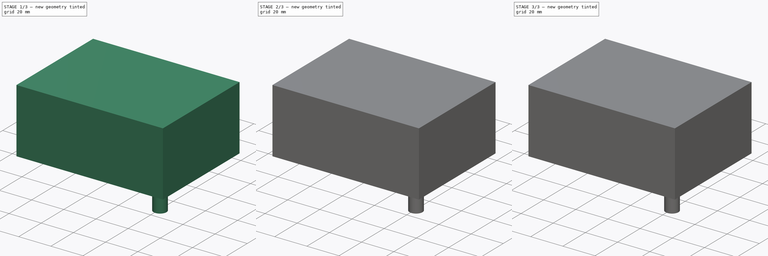
[diagram: build sequence overview — one tinted view per stage of 3, left to right]
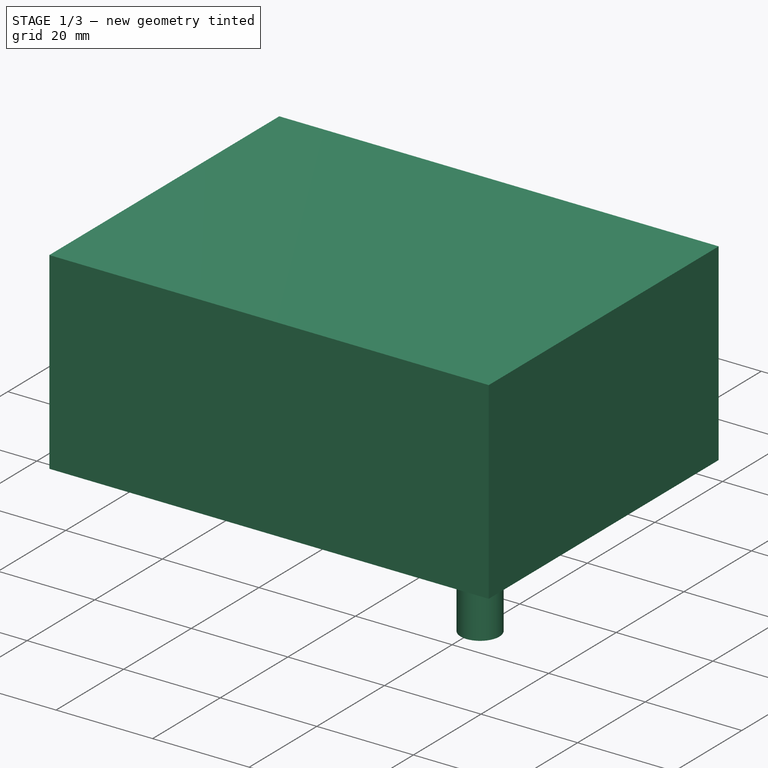
[diagram: stage 1 of 3 — iso view after this stage's code; geometry added in this stage tinted green]
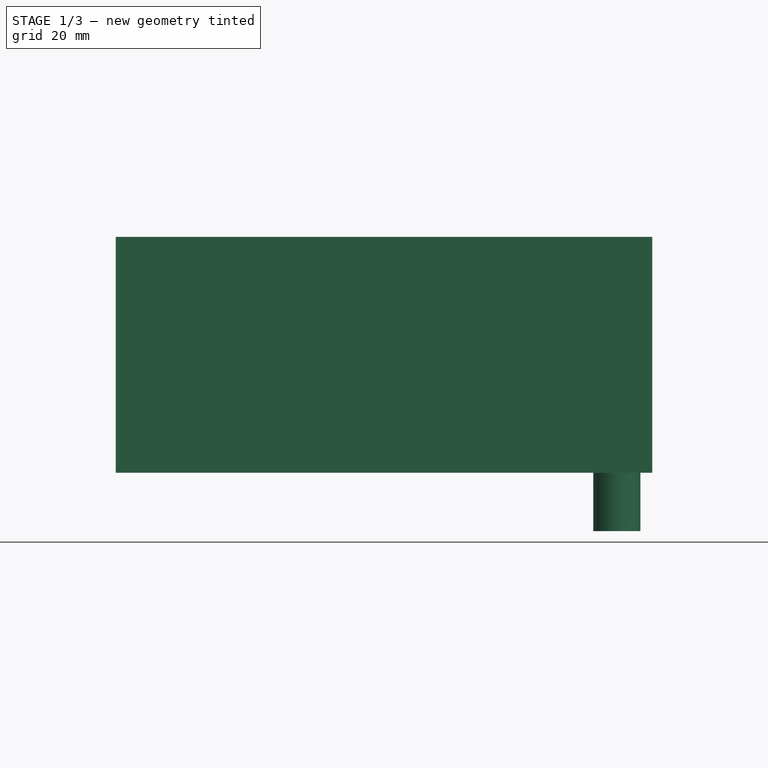
[diagram: stage 1 of 3 — front view after this stage's code; geometry added in this stage tinted green]
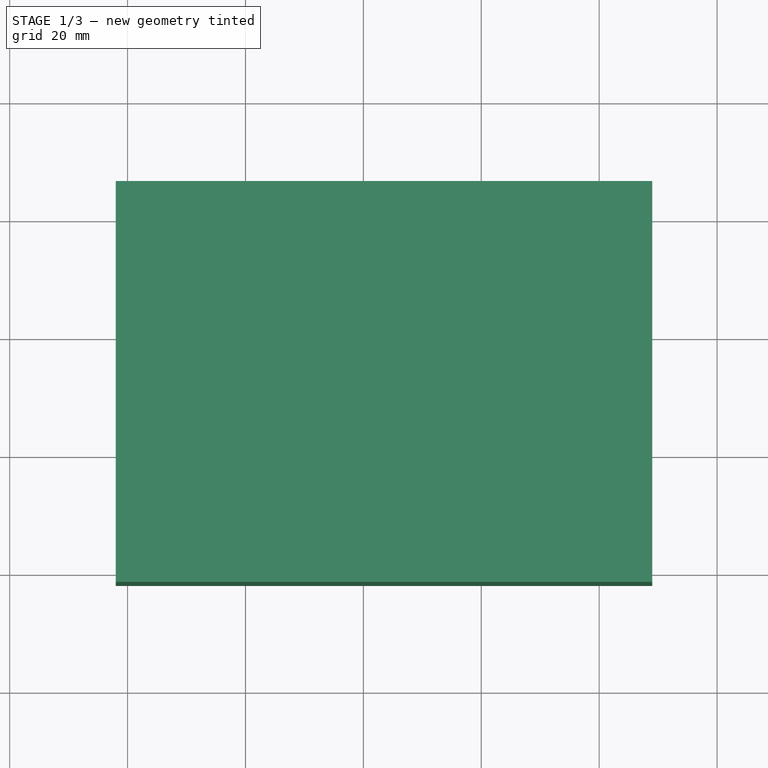
[diagram: stage 1 of 3 — top view after this stage's code; geometry added in this stage tinted green]
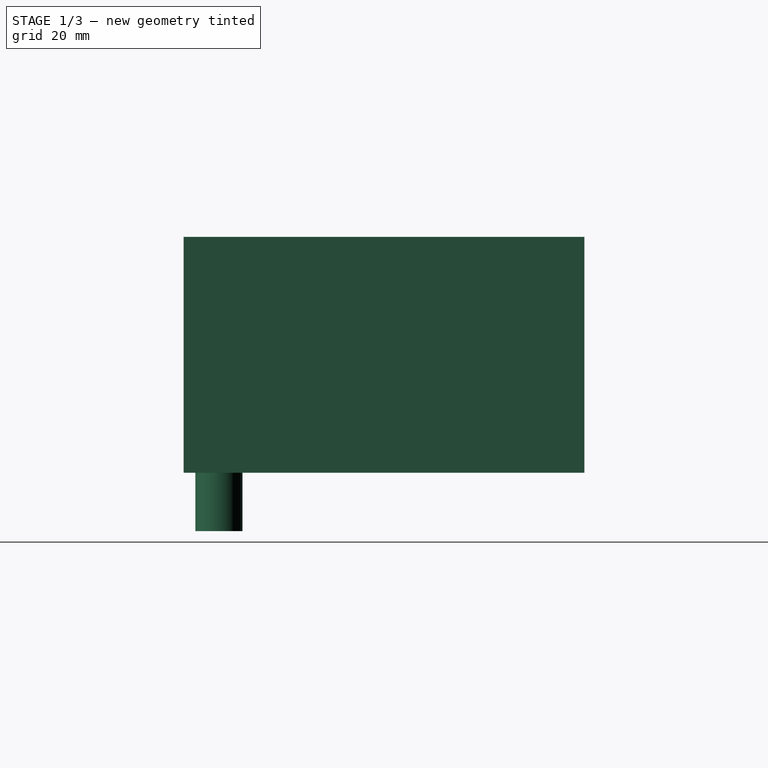
[diagram: stage 1 of 3 — right view after this stage's code; geometry added in this stage tinted green]
FCSTD DOCUMENT  (FreeCAD 0.14R3700 (Git))
Label: case-v0.1
License: CC-BY 3.0
LicenseURL: http://creativecommons.org/licenses/by/3.0/
objects: Part::Cylinder×20, Part::MultiFuse×9, Part::Box×6, Part::Cone×4, Sketcher::SketchObject×2, PartDesign::Pad×2, Part::Cut×1, Part::Offset×1
note: 47 computed .brp shape members not serialized (recipe doc carries the construction recipe); baked Part::Feature solids carry a one-line shape summary decoded from their .brp

FEATURE [Part::Box] Box001  label="inner-box-cutout"
  Height = 40
  Length = 91
  Placement = pos=(-2,-2,0) rot=(0,0,1;0rad)
  Width = 68
FEATURE [Part::Cylinder] Cylinder017
  Angle = 360
  Height = 10
  Placement = pos=(83,4,-9.9) rot=(0,0,1;0rad)
  Radius = 4
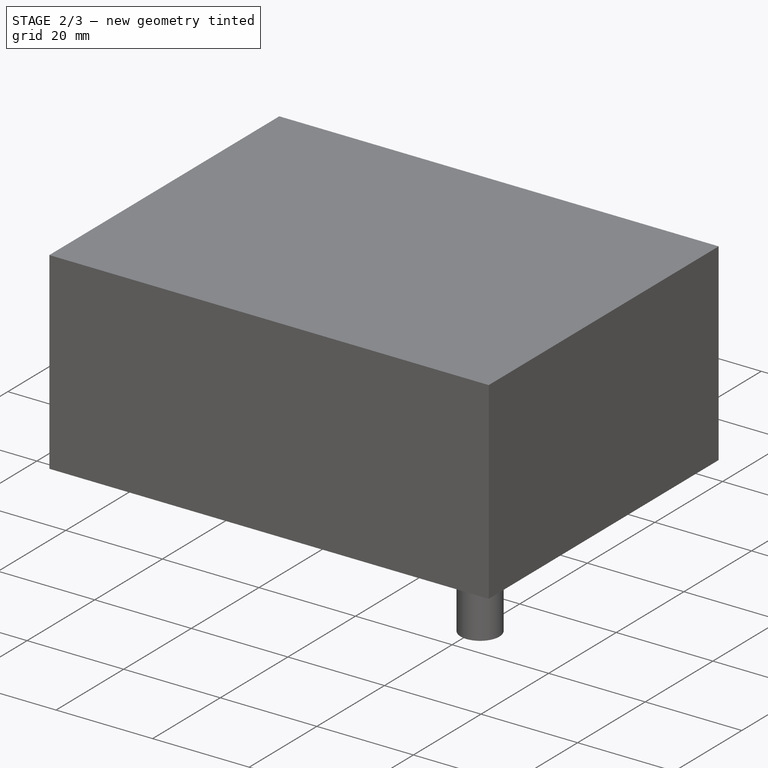
[diagram: stage 2 of 3 — iso view after this stage's code; geometry added in this stage tinted green]
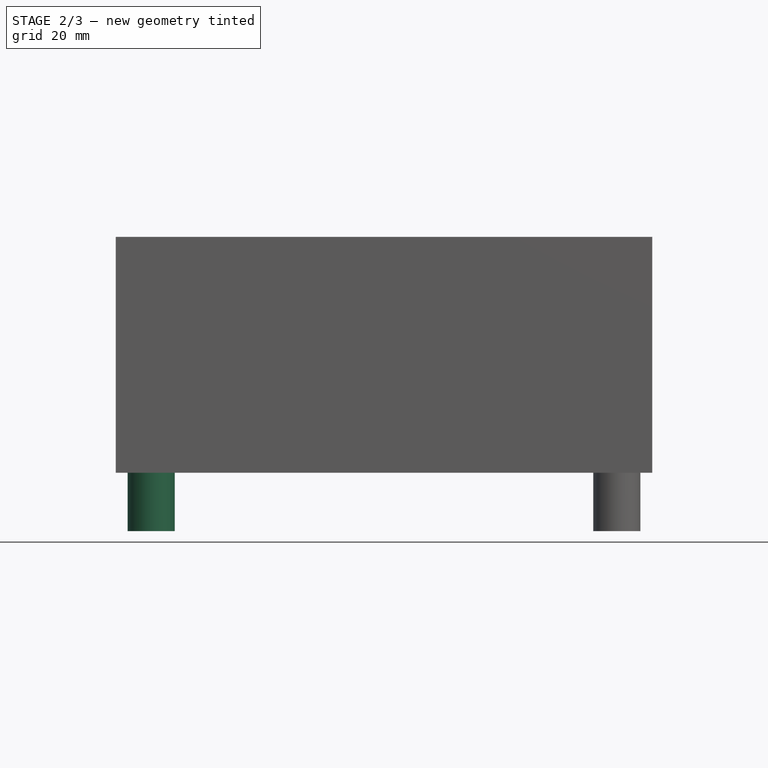
[diagram: stage 2 of 3 — front view after this stage's code; geometry added in this stage tinted green]
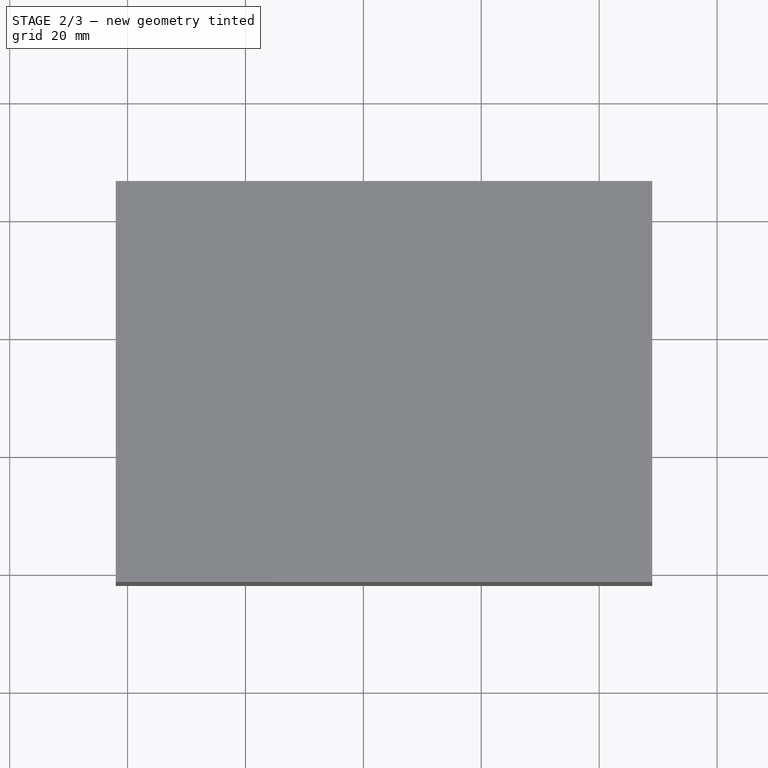
[diagram: stage 2 of 3 — top view after this stage's code; geometry added in this stage tinted green]
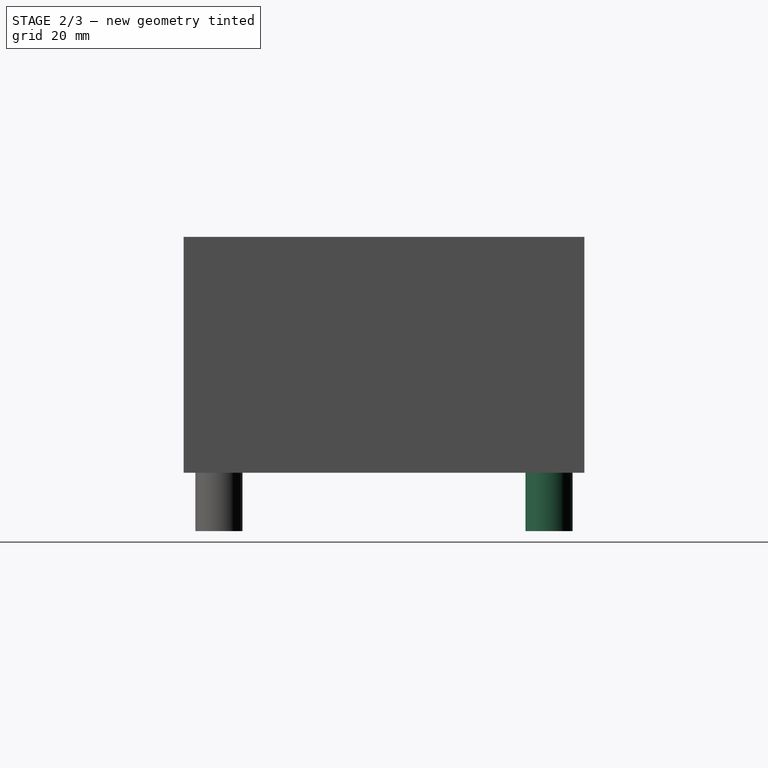
[diagram: stage 2 of 3 — right view after this stage's code; geometry added in this stage tinted green]
FEATURE [Part::Cylinder] Cylinder
  Angle = 360
  Height = 5.5
  Placement = pos=(4,4.5,-0.5) rot=(0,0,1;0rad)
  Radius = 2.3
FEATURE [Part::Cylinder] Cylinder001
  Angle = 360
  Height = 41
  Placement = pos=(83,4,-0.5) rot=(0,0,1;0rad)
  Radius = 2.3
FEATURE [Part::Cylinder] Cylinder002
  Angle = 360
  Height = 5.5
  Placement = pos=(83,60,-0.5) rot=(0,0,1;0rad)
  Radius = 2.3
FEATURE [Part::Cylinder] Cylinder003
  Angle = 360
  Height = 41
  Placement = pos=(4,60,-0.5) rot=(0,0,1;0rad)
  Radius = 2.3
FEATURE [Part::Box] Box004  label="usb-cutout"
  Height = 4.5
  Length = 10.6
  Placement = pos=(8.52,61,6.1) rot=(0,0,1;0rad)
  Width = 10
FEATURE [Part::Cylinder] Cylinder004
  Angle = 360
  Height = 10
  Placement = pos=(26,71,11.6) rot=(1,0,0;1.5708rad)
  Radius = 2.5
FEATURE [Part::Cylinder] Cylinder005
  Angle = 360
  Height = 10
  Placement = pos=(31.5,71,11.6) rot=(1,0,0;1.5708rad)
  Radius = 2.5
FEATURE [Part::Cylinder] Cylinder006
  Angle = 360
  Height = 10
  Placement = pos=(37,71,11.6) rot=(1,0,0;1.5708rad)
  Radius = 2.5
FEATURE [Part::MultiFuse] Fusion001  label="leds-cutout"
  Shapes = -> [Cylinder004,Cylinder005,Cylinder006]
FEATURE [Part::Cylinder] Cylinder007
  Angle = 360
  Height = 10
  Placement = pos=(42.9,72,16.6) rot=(1,0,0;1.5708rad)
  Radius = 2.5
FEATURE [Part::Cylinder] Cylinder008
  Angle = 360
  Height = 10
  Placement = pos=(50.55,72,16.6) rot=(1,0,0;1.5708rad)
  Radius = 2.5
FEATURE [Part::Cylinder] Cylinder009
  Angle = 360
  Height = 10
  Placement = pos=(58,5,16.6) rot=(1,0,0;1.5708rad)
  Radius = 2.5
FEATURE [Part::Cylinder] Cylinder010
  Angle = 360
  Height = 10
  Placement = pos=(68,5,16.6) rot=(1,0,0;1.5708rad)
  Radius = 2.5
FEATURE [Part::Cylinder] Cylinder011
  Angle = 360
  Height = 10
  Placement = pos=(78,5,16.6) rot=(1,0,0;1.5708rad)
  Radius = 2.5
FEATURE [Part::MultiFuse] Fusion002
  Shapes = -> [Cylinder007,Cylinder011,Cylinder009,Cylinder010,Cylinder008]
FEATURE [Part::Box] Box005
  Height = 7.5
  Length = 93
  Placement = pos=(-3,-3,-1) rot=(0,0,1;0rad)
  Width = 70
FEATURE [Sketcher::SketchObject] Sketch
  Placement = pos=(0,60,0) rot=(1,0,0;1.5708rad)
  sketch-geometry (8):
    g0: LineSegment StartX=18 StartY=0 StartZ=0 EndX=18 EndY=9 EndZ=0
    g1: LineSegment StartX=18 StartY=9 StartZ=0 EndX=23 EndY=17 EndZ=0
    g2: LineSegment StartX=23 StartY=17 StartZ=0 EndX=36 EndY=17 EndZ=0
    g3: LineSegment StartX=36 StartY=17 StartZ=0 EndX=41 EndY=22 EndZ=0
    g4: LineSegment StartX=41 StartY=22 StartZ=0 EndX=53 EndY=22 EndZ=0
    g5: LineSegment StartX=53 StartY=22 StartZ=0 EndX=65 EndY=6 EndZ=0
    g6: LineSegment StartX=65 StartY=6 StartZ=0 EndX=65 EndY=0 EndZ=0
    g7: LineSegment StartX=65 StartY=0 StartZ=0 EndX=18 EndY=0 EndZ=0
  constraints (24):
    c: PointOnObject(g0,g-1)
    c: Vertical(g0)
    c: Coincident(g0,g1)
    c: Coincident(g1,g2)
    c: Horizontal(g2)
    c: DistanceY(g0,g1) = 8
    c: DistanceY(g1,g0) = -17
    c: DistanceX(g-1,g0) = 18
    c: DistanceX(g0,g1) = 5
    c: Coincident(g2,g3)
    c: Coincident(g3,g4)
    c: Horizontal(g4)
    c: Coincident(g4,g5)
    c: Coincident(g5,g6)
    c: Vertical(g6)
    c: DistanceX(g1,g2) = 13
    c: DistanceY(g6,g4) = 22
    c: DistanceX(g2,g3) = 5
    c: DistanceX(g3,g4) = 12
    c: DistanceY(g5,g6) = -6
    c: Coincident(g6,g7)
    c: Coincident(g7,g0)
    c: Horizontal(g7)
    c: DistanceX(g4,g5) = 12
FEATURE [PartDesign::Pad] Pad
  Length = 30
  Length2 = 100
  Midplane = true
  Placement = pos=(0,60,0) rot=(1,0,0;1.5708rad)
  Sketch = -> Sketch
  Type = 0
FEATURE [Sketcher::SketchObject] Sketch001
  Placement = pos=(0,1,0) rot=(1,0,0;1.5708rad)
  sketch-geometry (4):
    g0: LineSegment StartX=48 StartY=6 StartZ=0 EndX=56 EndY=22 EndZ=0
    g1: LineSegment StartX=56 StartY=22 StartZ=0 EndX=80 EndY=22 EndZ=0
    g2: LineSegment StartX=80 StartY=22 StartZ=0 EndX=88 EndY=6 EndZ=0
    g3: LineSegment StartX=88 StartY=6 StartZ=0 EndX=48 EndY=6 EndZ=0
  constraints (12):
    c: Coincident(g0,g1)
    c: Horizontal(g1)
    c: Coincident(g1,g2)
    c: Coincident(g2,g3)
    c: Coincident(g3,g0)
    c: Horizontal(g3)
    c: DistanceX(g-1,g0) = 48
    c: DistanceX(g0,g0) = 8
    c: DistanceX(g2,g1) = -8
    c: DistanceX(g0,g1) = 24
    c: DistanceY(g0,g0) = 16
    c: DistanceY(g-1,g0) = 6
FEATURE [PartDesign::Pad] Pad001
  Length = 10
  Length2 = 100
  Placement = pos=(0,1,0) rot=(1,0,0;1.5708rad)
  Sketch = -> Sketch001
  Type = 0
FEATURE [Part::MultiFuse] Fusion003
  Shapes = -> [Box005,Pad,Pad001]
FEATURE [Part::Box] Box006
  Height = 10
  Length = 89
  Placement = pos=(-1,-1,0) rot=(0,0,1;0rad)
  Width = 66
FEATURE [Part::Box] Box007
  Height = 5
  Length = 89
  Placement = pos=(-1,-1,0) rot=(0,0,1;0rad)
  Width = 66
FEATURE [Part::Cylinder] Cylinder012
  Angle = 360
  Height = 5
  Placement = pos=(83,4,0) rot=(0,0,1;0rad)
  Radius = 1.75
FEATURE [Part::Cylinder] Cylinder013
  Angle = 360
  Height = 30
  Placement = pos=(83,4,0) rot=(0,0,1;0rad)
  Radius = 1.25
FEATURE [Part::Cone] Cone
  Angle = 360
  Height = 2
  Placement = pos=(83,4,0) rot=(0,0,1;0rad)
  Radius1 = 4
  Radius2 = 2
FEATURE [Part::MultiFuse] Fusion005
  Shapes = -> [Cylinder012,Cone,Cylinder013]
FEATURE [Part::Cylinder] Cylinder014
  Angle = 360
  Height = 30
  Placement = pos=(83,4,0) rot=(0,0,1;0rad)
  Radius = 1.25
FEATURE [Part::Cone] Cone001
  Angle = 360
  Height = 2
  Placement = pos=(83,4,0) rot=(0,0,1;0rad)
  Radius1 = 4
  Radius2 = 2
FEATURE [Part::Cylinder] Cylinder015
  Angle = 360
  Height = 5
  Placement = pos=(83,4,0) rot=(0,0,1;0rad)
  Radius = 1.75
FEATURE [Part::MultiFuse] Fusion006
  Placement = pos=(-79,56,0) rot=(0,0,1;0rad)
  Shapes = -> [Cylinder015,Cone001,Cylinder014]
FEATURE [Part::MultiFuse] Fusion007
  Shapes = -> [Fusion005,Fusion006]
FEATURE [Part::Cylinder] Cylinder016
  Angle = 360
  Height = 10
  Placement = pos=(4,60,-9.9) rot=(0,0,1;0rad)
  Radius = 4
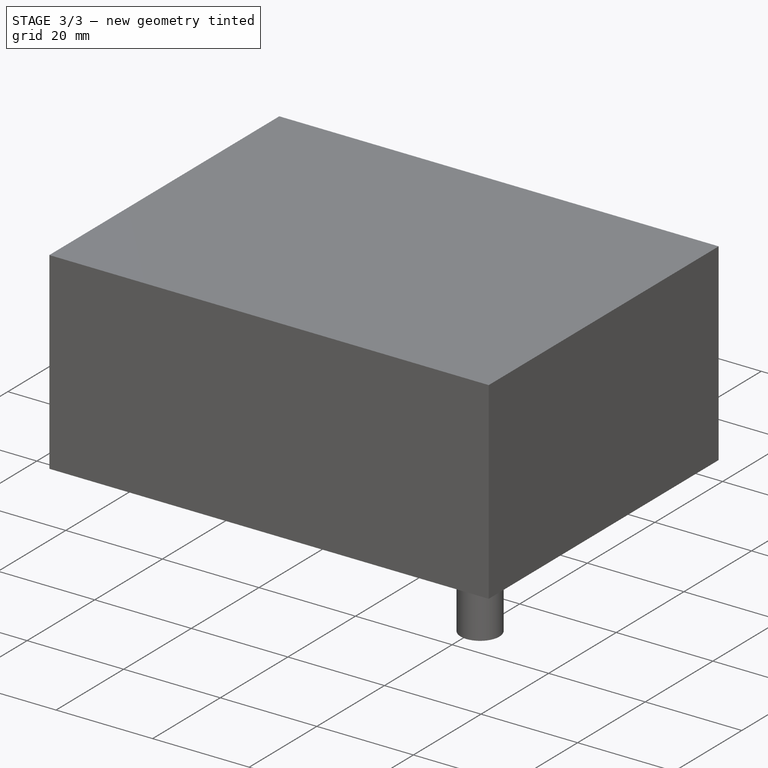
[diagram: stage 3 of 3 — iso view after this stage's code; geometry added in this stage tinted green]
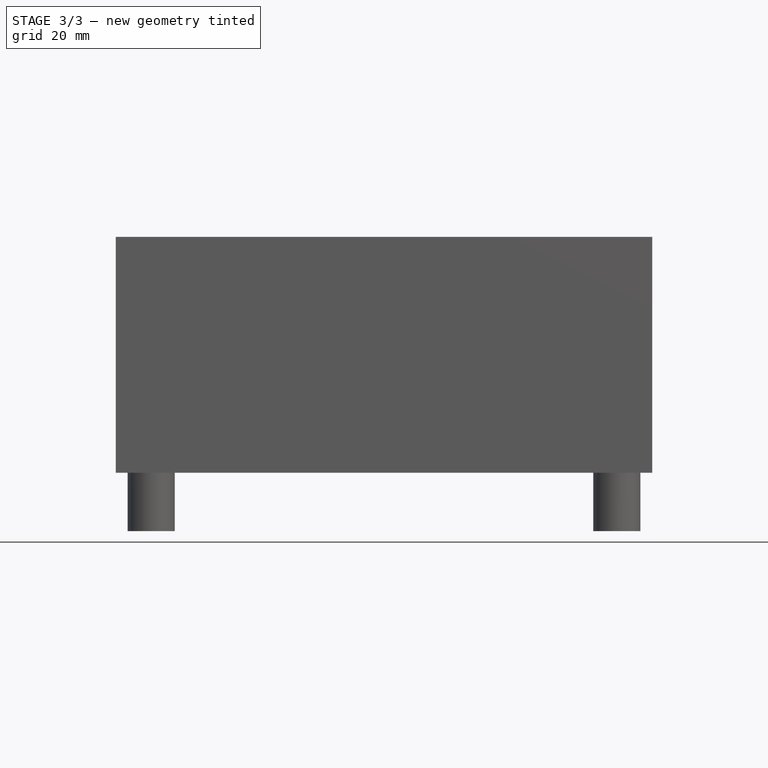
[diagram: stage 3 of 3 — front view after this stage's code; geometry added in this stage tinted green]
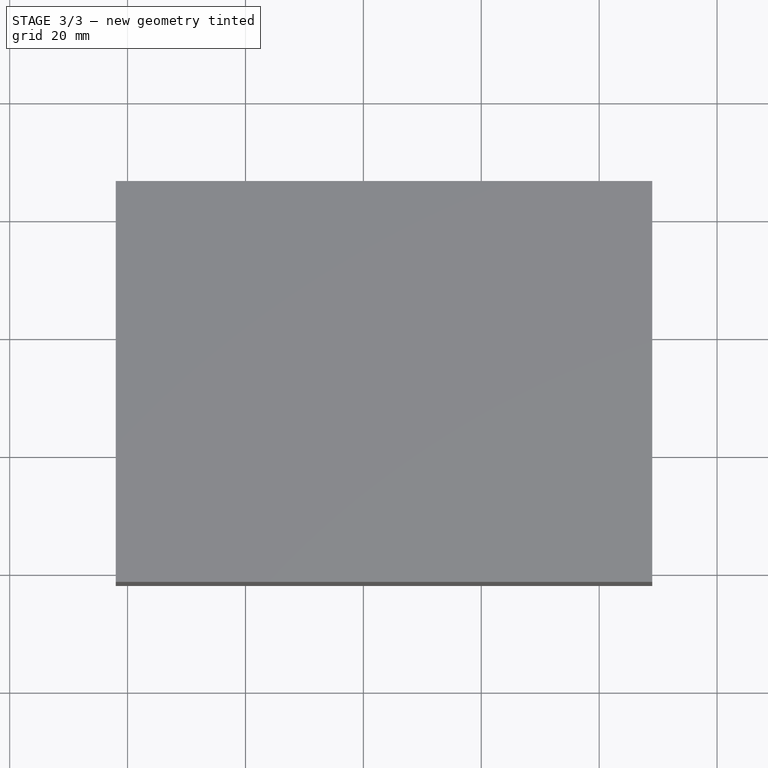
[diagram: stage 3 of 3 — top view after this stage's code; geometry added in this stage tinted green]
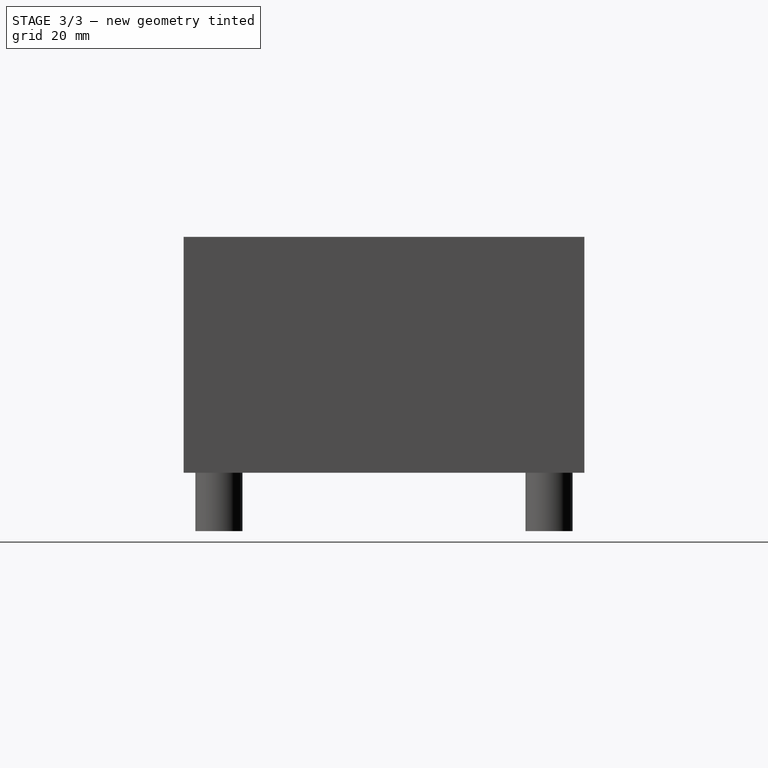
[diagram: stage 3 of 3 — right view after this stage's code; geometry added in this stage tinted green]
FEATURE [Part::Box] Box  label="board-dimensions"
  Height = 40
  Length = 87
  Width = 64
FEATURE [Part::MultiFuse] Fusion008
  Shapes = -> [Fusion007,Cylinder016,Cylinder017]
FEATURE [Part::Cone] Cone002
  Angle = 360
  Height = 2.5
  Placement = pos=(4,60,0) rot=(0,0,1;0rad)
  Radius1 = 4.8
  Radius2 = 2.3
FEATURE [Part::Cone] Cone003
  Angle = 360
  Height = 2.5
  Placement = pos=(83,4,0) rot=(0,0,1;0rad)
  Radius1 = 4.8
  Radius2 = 2.3
FEATURE [Part::Cylinder] Cylinder018
  Angle = 360
  Height = 6.8
  Placement = pos=(4,60,0) rot=(0,0,1;0rad)
  Radius = 3
FEATURE [Part::Cylinder] Cylinder019
  Angle = 360
  Height = 6.8
  Placement = pos=(83,4,0) rot=(0,0,1;0rad)
  Radius = 3
FEATURE [Part::MultiFuse] Fusion010
  Shapes = -> [Cylinder018,Cylinder019]
FEATURE [Part::Cut] Cut005
  Base = -> Fusion003
  Tool = -> Box006
FEATURE [Part::MultiFuse] Fusion004
  Shapes = -> [Cut005,Box007]
FEATURE [Part::Offset] Offset
  Fill = true
  Intersection = true
  Join = 0
  Mode = 0
  SelfIntersection = true
  Source = -> Box001
  Value = 3
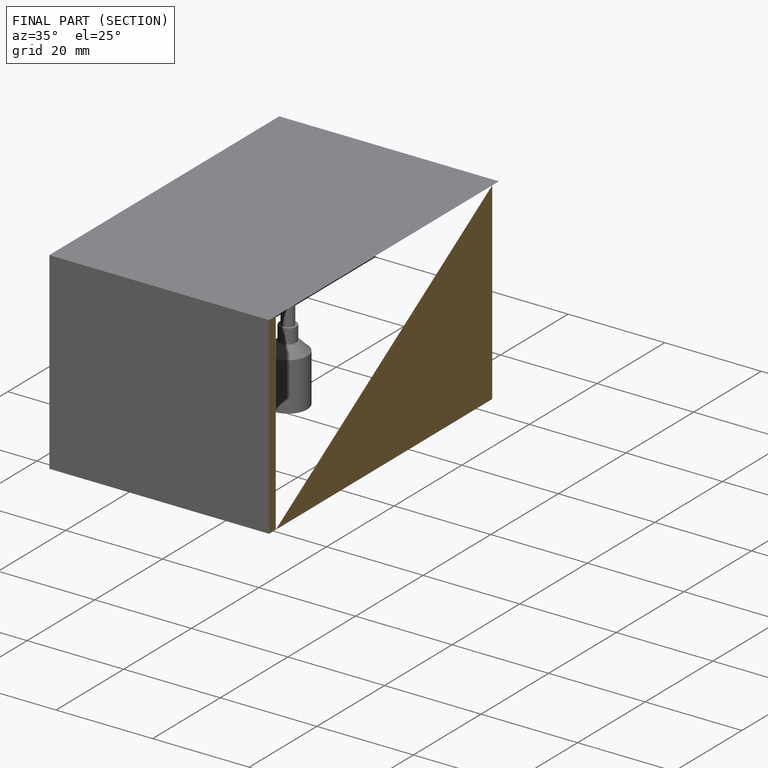
[diagram: finished part — half-section view (interior)]
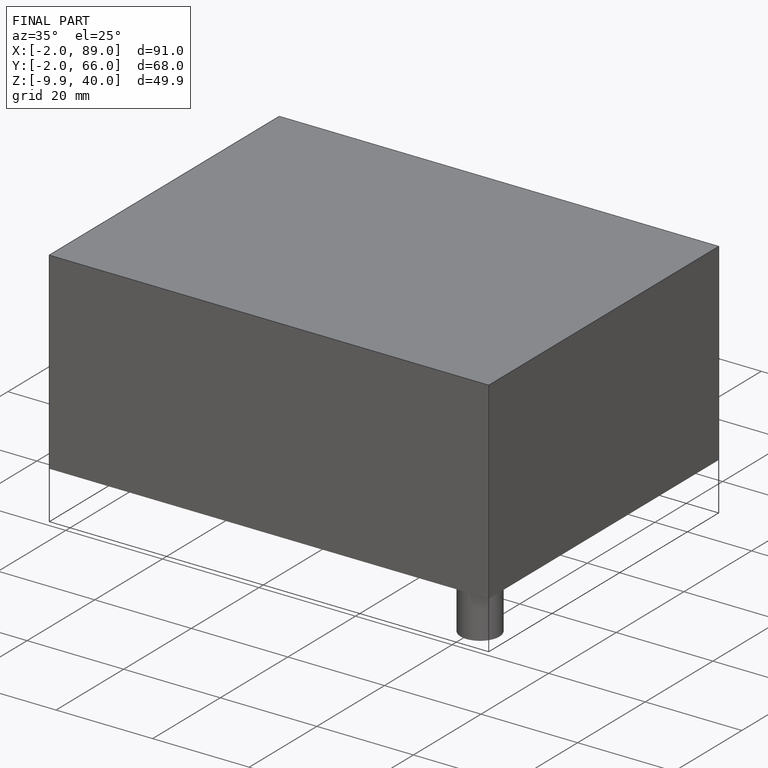
[diagram: finished part — iso view with bounding-box wireframe]
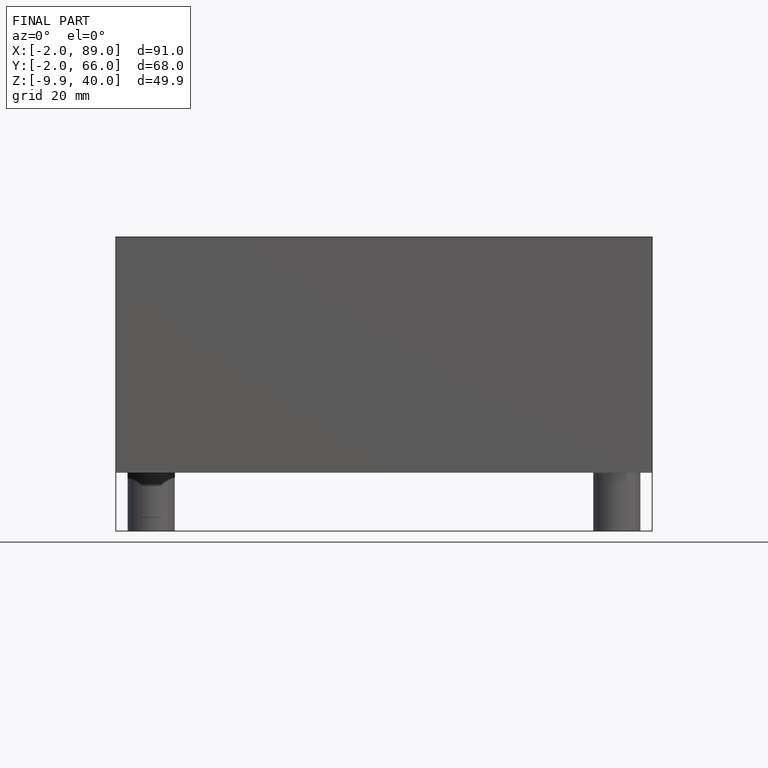
[diagram: finished part — front view with bounding-box wireframe]
